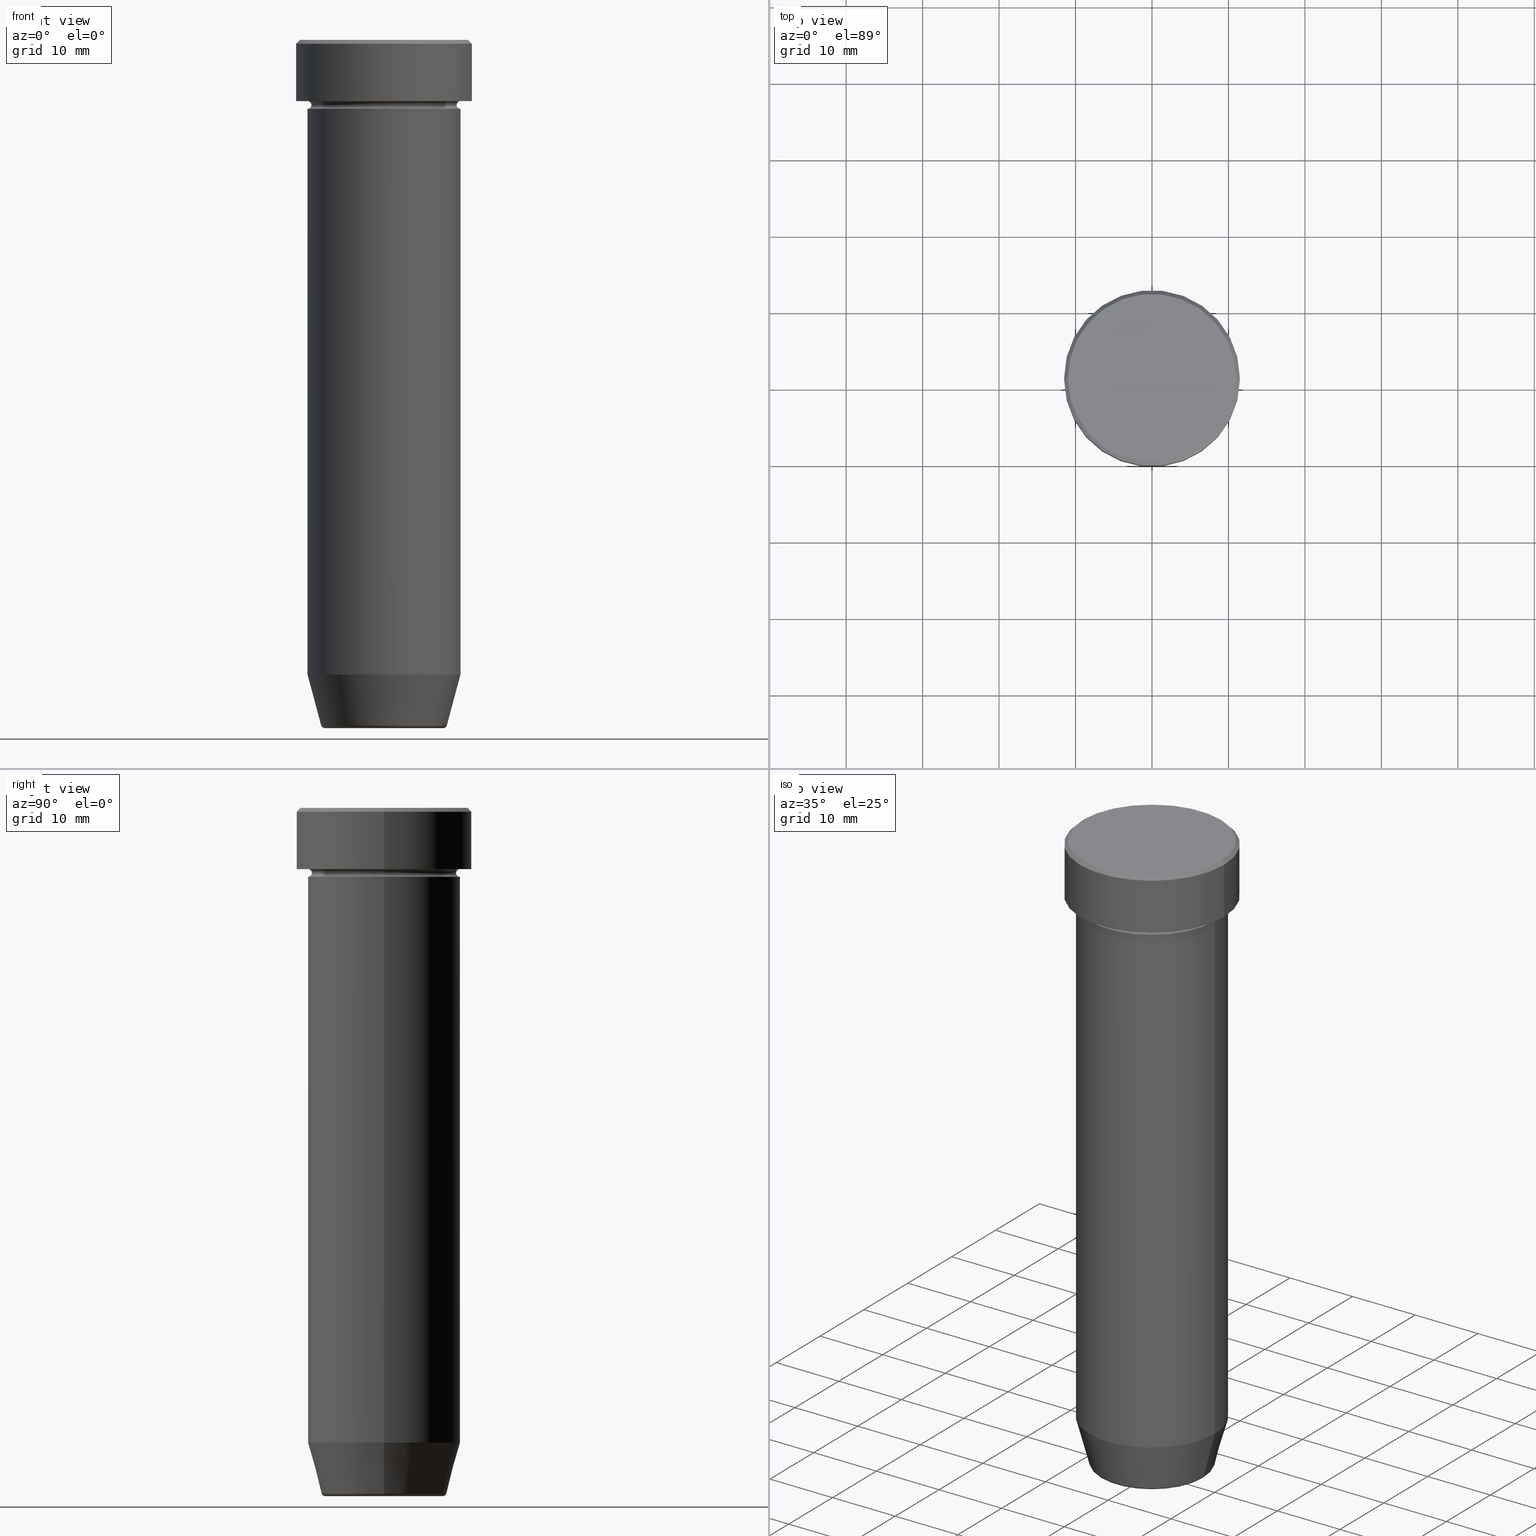
[diagram: canonical four-view strip — front | top / right | iso, engineering-drawing reading convention]
A machine part, canonical four-view strip (front | top / right | iso — engineering-drawing reading convention). The complete STEP part file that produces these views, byte-faithful:
ISO-10303-21;
HEADER;
FILE_DESCRIPTION (( 'STEP AP203' ),
    '1' );
FILE_NAME ('7908.STEP',
    '2024-01-02T20:53:57',
    ( '' ),
    ( '' ),
    'SwSTEP 2.0',
    'SolidWorks 2019',
    '' );
FILE_SCHEMA (( 'CONFIG_CONTROL_DESIGN' ));
ENDSEC;

DATA;
#1 = DIRECTION ( 'NONE',  ( 1.000000000000000000, 0.000000000000000000, 0.000000000000000000 ) ) ;
#2 = ORIENTED_EDGE ( 'NONE', *, *, #128, .F. ) ;
#3 = APPROVAL_STATUS ( 'not_yet_approved' ) ;
#4 = DIRECTION ( 'NONE',  ( -1.000000000000000000, 0.000000000000000000, 0.000000000000000000 ) ) ;
#5 = ORIENTED_EDGE ( 'NONE', *, *, #25, .T. ) ;
#6 = PERSON_AND_ORGANIZATION_ROLE ( 'design_owner' ) ;
#7 = CIRCLE ( 'NONE', #17, 10.00000000000000000 ) ;
#8 = FACE_OUTER_BOUND ( 'NONE', #13, .T. ) ;
#9 = ORIENTED_EDGE ( 'NONE', *, *, #377, .T. ) ;
#10 = APPROVAL ( #371, 'NEUR�EN�' ) ;
#11 = COORDINATED_UNIVERSAL_TIME_OFFSET ( 1, 0, .AHEAD. ) ;
#12 = CARTESIAN_POINT ( 'NONE',  ( 0.000000000000000000, 0.000000000000000000, -22.00000000000000000 ) ) ;
#13 = EDGE_LOOP ( 'NONE', ( #460, #190, #314, #96 ) ) ;
#14 = PLANE ( 'NONE',  #70 ) ;
#15 = ORIENTED_EDGE ( 'NONE', *, *, #311, .F. ) ;
#16 = EDGE_CURVE ( 'NONE', #172, #57, #565, .T. ) ;
#17 = AXIS2_PLACEMENT_3D ( 'NONE', #284, #519, #54 ) ;
#18 = DIRECTION ( 'NONE',  ( -1.000000000000000000, 0.000000000000000000, 0.000000000000000000 ) ) ;
#19 = AXIS2_PLACEMENT_3D ( 'NONE', #391, #575, #487 ) ;
#20 = EDGE_LOOP ( 'NONE', ( #346, #339 ) ) ;
#21 = PRODUCT_RELATED_PRODUCT_CATEGORY ( 'detail', '', ( #329 ) ) ;
#22 = CARTESIAN_POINT ( 'NONE',  ( 0.000000000000000000, 0.000000000000000000, -0.5000000000000073275 ) ) ;
#23 = DIRECTION ( 'NONE',  ( -0.000000000000000000, -0.000000000000000000, 1.000000000000000000 ) ) ;
#24 = DIRECTION ( 'NONE',  ( -1.000000000000000000, 0.000000000000000000, 0.000000000000000000 ) ) ;
#25 = EDGE_CURVE ( 'NONE', #370, #295, #159, .T. ) ;
#26 = TOROIDAL_SURFACE ( 'NONE', #263, 7.740692158992650285, 0.5000000000000000000 ) ;
#27 = DIRECTION ( 'NONE',  ( 0.000000000000000000, 0.000000000000000000, -1.000000000000000000 ) ) ;
#28 = LINE ( 'NONE', #216, #535 ) ;
#29 = FACE_OUTER_BOUND ( 'NONE', #368, .T. ) ;
#30 = CARTESIAN_POINT ( 'NONE',  ( 0.000000000000000000, 0.000000000000000000, 0.000000000000000000 ) ) ;
#31 = ADVANCED_FACE ( 'NONE', ( #305 ), #348, .T. ) ;
#32 = CARTESIAN_POINT ( 'NONE',  ( 0.000000000000000000, 0.000000000000000000, -89.50000000000000000 ) ) ;
#33 = DIRECTION ( 'NONE',  ( -0.000000000000000000, -0.000000000000000000, 1.000000000000000000 ) ) ;
#34 = ORIENTED_EDGE ( 'NONE', *, *, #343, .T. ) ;
#35 = DIRECTION ( 'NONE',  ( -0.000000000000000000, -1.000000000000000000, -0.000000000000000000 ) ) ;
#36 = CONICAL_SURFACE ( 'NONE', #381, 8.124355652982131915, 0.2617993877991502405 ) ;
#37 = FACE_BOUND ( 'NONE', #177, .T. ) ;
#38 = VERTEX_POINT ( 'NONE', #392 ) ;
#39 = ADVANCED_FACE ( 'NONE', ( #491 ), #36, .T. ) ;
#40 = APPROVAL_ROLE ( '' ) ;
#41 = DIRECTION ( 'NONE',  ( -1.000000000000000000, 0.000000000000000000, 0.000000000000000000 ) ) ;
#42 = EDGE_LOOP ( 'NONE', ( #376, #429, #206, #239 ) ) ;
#43 = AXIS2_PLACEMENT_3D ( 'NONE', #12, #235, #98 ) ;
#44 = CYLINDRICAL_SURFACE ( 'NONE', #435, 11.50000000000000000 ) ;
#45 = DATE_TIME_ROLE ( 'creation_date' ) ;
#46 = DIRECTION ( 'NONE',  ( -0.000000000000000000, -0.000000000000000000, 1.000000000000000000 ) ) ;
#47 = ORIENTED_EDGE ( 'NONE', *, *, #311, .T. ) ;
#48 = PERSON_AND_ORGANIZATION ( #325, #94 ) ;
#49 = EDGE_CURVE ( 'NONE', #373, #92, #310, .T. ) ;
#50 = CARTESIAN_POINT ( 'NONE',  ( -10.00000000000000000, 1.224646799147353256E-15, -22.00000000000000000 ) ) ;
#51 = VERTEX_POINT ( 'NONE', #68 ) ;
#52 = CALENDAR_DATE ( 2024, 2, 1 ) ;
#53 = CIRCLE ( 'NONE', #451, 0.4999999999999995559 ) ;
#54 = DIRECTION ( 'NONE',  ( -1.000000000000000000, 0.000000000000000000, 0.000000000000000000 ) ) ;
#55 = VERTEX_POINT ( 'NONE', #534 ) ;
#56 = CARTESIAN_POINT ( 'NONE',  ( 0.000000000000000000, 0.000000000000000000, -8.000000000000000000 ) ) ;
#57 = VERTEX_POINT ( 'NONE', #255 ) ;
#58 = EDGE_CURVE ( 'NONE', #172, #295, #187, .T. ) ;
#59 = UNCERTAINTY_MEASURE_WITH_UNIT (LENGTH_MEASURE( 1.000000000000000082E-05 ), #210, 'distance_accuracy_value', 'NONE');
#60 = DIRECTION ( 'NONE',  ( -1.000000000000000000, 1.224646799147355426E-16, 0.000000000000000000 ) ) ;
#61 = ORIENTED_EDGE ( 'NONE', *, *, #409, .F. ) ;
#62 = AXIS2_PLACEMENT_3D ( 'NONE', #217, #111, #127 ) ;
#63 = CARTESIAN_POINT ( 'NONE',  ( -11.50000000000000000, 1.408343819019456176E-15, -0.5000000000000073275 ) ) ;
#64 = ORIENTED_EDGE ( 'NONE', *, *, #393, .T. ) ;
#65 = CLOSED_SHELL ( 'NONE', ( #420, #249, #231, #552, #188, #452, #208, #31, #283, #296, #165, #160, #149 ) ) ;
#66 = FACE_OUTER_BOUND ( 'NONE', #566, .T. ) ;
#67 = ADVANCED_FACE ( 'NONE', ( #29 ), #73, .F. ) ;
#68 = CARTESIAN_POINT ( 'NONE',  ( -7.740692158992650285, 9.775343368540031246E-16, -90.00000000000000000 ) ) ;
#69 = CARTESIAN_POINT ( 'NONE',  ( 0.000000000000000000, 0.000000000000000000, -90.00000000000000000 ) ) ;
#70 = AXIS2_PLACEMENT_3D ( 'NONE', #156, #192, #375 ) ;
#71 = AXIS2_PLACEMENT_3D ( 'NONE', #410, #495, #577 ) ;
#72 = CARTESIAN_POINT ( 'NONE',  ( 0.000000000000000000, 0.000000000000000000, -82.99999999999998579 ) ) ;
#73 = PLANE ( 'NONE',  #431 ) ;
#74 = EDGE_CURVE ( 'NONE', #474, #525, #28, .T. ) ;
#75 =( NAMED_UNIT ( * ) PLANE_ANGLE_UNIT ( ) SI_UNIT ( $, .RADIAN. ) );
#76 = DIRECTION ( 'NONE',  ( -1.000000000000000000, 1.224646799147353454E-16, 0.000000000000000000 ) ) ;
#77 = DIRECTION ( 'NONE',  ( 1.000000000000000000, 0.000000000000000000, 0.000000000000000000 ) ) ;
#78 = DIRECTION ( 'NONE',  ( 0.000000000000000000, -0.000000000000000000, 1.000000000000000000 ) ) ;
#79 = CIRCLE ( 'NONE', #180, 11.50000000000000000 ) ;
#80 = TOROIDAL_SURFACE ( 'NONE', #511, 7.740692158992650285, 0.5000000000000000000 ) ;
#81 = EDGE_LOOP ( 'NONE', ( #422, #274 ) ) ;
#82 = DIRECTION ( 'NONE',  ( 1.000000000000000000, 0.000000000000000000, 0.000000000000000000 ) ) ;
#83 = EDGE_CURVE ( 'NONE', #134, #506, #260, .T. ) ;
#84 = CARTESIAN_POINT ( 'NONE',  ( -9.500000000000000000, 1.194030629168669469E-15, -8.500000000000000000 ) ) ;
#85 = ORIENTED_EDGE ( 'NONE', *, *, #590, .F. ) ;
#86 = APPROVAL_ROLE ( '' ) ;
#87 = VECTOR ( 'NONE', #357, 1000.000000000000000 ) ;
#88 = FACE_OUTER_BOUND ( 'NONE', #529, .T. ) ;
#89 = EDGE_LOOP ( 'NONE', ( #290, #545, #321, #85 ) ) ;
#90 = DIRECTION ( 'NONE',  ( 0.000000000000000000, 0.000000000000000000, 1.000000000000000000 ) ) ;
#91 = CARTESIAN_POINT ( 'NONE',  ( 11.00000000000000000, 1.377727649040772389E-15, 0.000000000000000000 ) ) ;
#92 = VERTEX_POINT ( 'NONE', #308 ) ;
#93 = AXIS2_PLACEMENT_3D ( 'NONE', #564, #337, #523 ) ;
#94 = ORGANIZATION ( 'NEUR�EN�', 'NEUR�EN�', '' ) ;
#95 = DIRECTION ( 'NONE',  ( 1.000000000000000000, 0.000000000000000000, 0.000000000000000000 ) ) ;
#96 = ORIENTED_EDGE ( 'NONE', *, *, #497, .F. ) ;
#97 = EDGE_CURVE ( 'NONE', #344, #373, #583, .T. ) ;
#98 = DIRECTION ( 'NONE',  ( 1.000000000000000000, 0.000000000000000000, 0.000000000000000000 ) ) ;
#99 = EDGE_LOOP ( 'NONE', ( #148, #571, #412, #107 ) ) ;
#100 = APPROVAL_STATUS ( 'not_yet_approved' ) ;
#101 = DIRECTION ( 'NONE',  ( 1.000000000000000000, 0.000000000000000000, 0.000000000000000000 ) ) ;
#102 = VERTEX_POINT ( 'NONE', #580 ) ;
#103 = AXIS2_PLACEMENT_3D ( 'NONE', #292, #475, #18 ) ;
#104 = LOCAL_TIME ( 21, 53, 57.00000000000000000, #195 ) ;
#105 = DIRECTION ( 'NONE',  ( -0.000000000000000000, -0.000000000000000000, 1.000000000000000000 ) ) ;
#106 = ADVANCED_FACE ( 'NONE', ( #163 ), #304, .T. ) ;
#107 = ORIENTED_EDGE ( 'NONE', *, *, #400, .F. ) ;
#108 = CARTESIAN_POINT ( 'NONE',  ( 0.000000000000000000, 0.000000000000000000, -22.00000000000000000 ) ) ;
#109 = AXIS2_PLACEMENT_3D ( 'NONE', #448, #254, #442 ) ;
#110 = VERTEX_POINT ( 'NONE', #352 ) ;
#111 = DIRECTION ( 'NONE',  ( -0.000000000000000000, -0.000000000000000000, 1.000000000000000000 ) ) ;
#112 = ORIENTED_EDGE ( 'NONE', *, *, #518, .F. ) ;
#113 = AXIS2_PLACEMENT_3D ( 'NONE', #478, #382, #281 ) ;
#114 = CARTESIAN_POINT ( 'NONE',  ( 0.000000000000000000, 0.000000000000000000, -9.000000000000001776 ) ) ;
#115 = DIRECTION ( 'NONE',  ( 0.000000000000000000, 0.000000000000000000, -1.000000000000000000 ) ) ;
#116 = DIRECTION ( 'NONE',  ( 1.000000000000000000, 0.000000000000000000, 0.000000000000000000 ) ) ;
#117 = VECTOR ( 'NONE', #576, 1000.000000000000114 ) ;
#118 = DIRECTION ( 'NONE',  ( 1.224646799147353207E-16, 1.000000000000000000, 0.000000000000000000 ) ) ;
#119 = AXIS2_PLACEMENT_3D ( 'NONE', #108, #105, #465 ) ;
#120 = SECURITY_CLASSIFICATION ( '', '', #135 ) ;
#121 = DIRECTION ( 'NONE',  ( 0.000000000000000000, 0.000000000000000000, -1.000000000000000000 ) ) ;
#122 = EDGE_CURVE ( 'NONE', #51, #426, #174, .T. ) ;
#123 = DIRECTION ( 'NONE',  ( 1.000000000000000000, 0.000000000000000000, 0.000000000000000000 ) ) ;
#124 = DIRECTION ( 'NONE',  ( -0.000000000000000000, -0.000000000000000000, 1.000000000000000000 ) ) ;
#125 = ORIENTED_EDGE ( 'NONE', *, *, #333, .T. ) ;
#126 = APPLICATION_CONTEXT ( 'configuration controlled 3d designs of mechanical parts and assemblies' ) ;
#127 = DIRECTION ( 'NONE',  ( 1.000000000000000000, 0.000000000000000000, 0.000000000000000000 ) ) ;
#128 = EDGE_CURVE ( 'NONE', #224, #525, #582, .T. ) ;
#129 = CARTESIAN_POINT ( 'NONE',  ( 0.000000000000000000, 0.000000000000000000, 0.000000000000000000 ) ) ;
#130 = TOROIDAL_SURFACE ( 'NONE', #324, 10.00000000000000000, 0.5000000000000000000 ) ;
#131 = ORIENTED_EDGE ( 'NONE', *, *, #351, .T. ) ;
#132 = PERSON_AND_ORGANIZATION_ROLE ( 'creator' ) ;
#133 = DIRECTION ( 'NONE',  ( -0.000000000000000000, -0.000000000000000000, 1.000000000000000000 ) ) ;
#134 = VERTEX_POINT ( 'NONE', #537 ) ;
#135 = SECURITY_CLASSIFICATION_LEVEL ( 'unclassified' ) ;
#136 = DIRECTION ( 'NONE',  ( 1.000000000000000000, 0.000000000000000000, 0.000000000000000000 ) ) ;
#137 = ORIENTED_EDGE ( 'NONE', *, *, #562, .T. ) ;
#138 = COORDINATED_UNIVERSAL_TIME_OFFSET ( 1, 0, .AHEAD. ) ;
#139 = DIRECTION ( 'NONE',  ( 1.000000000000000000, 0.000000000000000000, 0.000000000000000000 ) ) ;
#140 = AXIS2_PLACEMENT_3D ( 'NONE', #463, #362, #320 ) ;
#141 = ORIENTED_EDGE ( 'NONE', *, *, #464, .T. ) ;
#142 = EDGE_CURVE ( 'NONE', #102, #92, #480, .T. ) ;
#143 = CIRCLE ( 'NONE', #416, 10.00000000000000000 ) ;
#144 = CARTESIAN_POINT ( 'NONE',  ( -11.00000000000000000, 0.000000000000000000, 0.000000000000000000 ) ) ;
#145 = ORIENTED_EDGE ( 'NONE', *, *, #97, .T. ) ;
#146 = PERSON_AND_ORGANIZATION_ROLE ( 'design_supplier' ) ;
#147 = DIRECTION ( 'NONE',  ( 1.000000000000000000, 0.000000000000000000, 0.000000000000000000 ) ) ;
#148 = ORIENTED_EDGE ( 'NONE', *, *, #581, .F. ) ;
#149 = ADVANCED_FACE ( 'NONE', ( #215 ), #374, .T. ) ;
#150 = DIRECTION ( 'NONE',  ( 1.000000000000000000, 0.000000000000000000, 0.000000000000000000 ) ) ;
#151 = EDGE_LOOP ( 'NONE', ( #323, #386, #331, #298 ) ) ;
#152 = AXIS2_PLACEMENT_3D ( 'NONE', #330, #515, #309 ) ;
#153 = CARTESIAN_POINT ( 'NONE',  ( 10.00000000000000000, 0.000000000000000000, -9.000000000000001776 ) ) ;
#154 = ADVANCED_BREP_SHAPE_REPRESENTATION ( '7908', ( #485, #285, #532 ), #462 ) ;
#155 = ORIENTED_EDGE ( 'NONE', *, *, #49, .F. ) ;
#156 = CARTESIAN_POINT ( 'NONE',  ( 0.000000000000000000, 10.00000000000000000, -22.00000000000000000 ) ) ;
#157 = ORIENTED_EDGE ( 'NONE', *, *, #573, .T. ) ;
#158 = FACE_OUTER_BOUND ( 'NONE', #433, .T. ) ;
#159 = LINE ( 'NONE', #584, #87 ) ;
#160 = ADVANCED_FACE ( 'NONE', ( #512 ), #130, .F. ) ;
#161 = CIRCLE ( 'NONE', #500, 7.740692158992650285 ) ;
#162 = APPLICATION_CONTEXT ( 'configuration controlled 3d designs of mechanical parts and assemblies' ) ;
#163 = FACE_OUTER_BOUND ( 'NONE', #503, .T. ) ;
#164 = CARTESIAN_POINT ( 'NONE',  ( 11.00000000000000000, 1.347111479062088405E-15, 0.000000000000000000 ) ) ;
#165 = ADVANCED_FACE ( 'NONE', ( #502 ), #558, .F. ) ;
#166 = DIRECTION ( 'NONE',  ( 1.000000000000000000, 0.000000000000000000, 0.000000000000000000 ) ) ;
#167 = AXIS2_PLACEMENT_3D ( 'NONE', #297, #269, #454 ) ;
#168 = LOCAL_TIME ( 21, 53, 57.00000000000000000, #287 ) ;
#169 = DIRECTION ( 'NONE',  ( -0.000000000000000000, -0.000000000000000000, 1.000000000000000000 ) ) ;
#170 = CARTESIAN_POINT ( 'NONE',  ( 0.000000000000000000, 0.000000000000000000, -89.62940952255125637 ) ) ;
#171 = FACE_OUTER_BOUND ( 'NONE', #479, .T. ) ;
#172 = VERTEX_POINT ( 'NONE', #84 ) ;
#173 = ADVANCED_FACE ( 'NONE', ( #317 ), #549, .F. ) ;
#174 = CIRCLE ( 'NONE', #334, 7.740692158992650285 ) ;
#175 = DIRECTION ( 'NONE',  ( -0.000000000000000000, -0.000000000000000000, 1.000000000000000000 ) ) ;
#176 = PLANE ( 'NONE',  #586 ) ;
#177 = EDGE_LOOP ( 'NONE', ( #131, #245 ) ) ;
#178 = CARTESIAN_POINT ( 'NONE',  ( 0.000000000000000000, 0.000000000000000000, -8.000000000000000000 ) ) ;
#179 = CYLINDRICAL_SURFACE ( 'NONE', #212, 9.999999999999998224 ) ;
#180 = AXIS2_PLACEMENT_3D ( 'NONE', #468, #567, #147 ) ;
#181 = CIRCLE ( 'NONE', #62, 11.00000000000000000 ) ;
#182 = SHAPE_DEFINITION_REPRESENTATION ( #183, #154 ) ;
#183 = PRODUCT_DEFINITION_SHAPE ( 'NONE', 'NONE',  #198 ) ;
#184 = DIRECTION ( 'NONE',  ( -0.000000000000000000, -0.000000000000000000, 1.000000000000000000 ) ) ;
#185 = ORIENTED_EDGE ( 'NONE', *, *, #264, .F. ) ;
#186 = PERSON_AND_ORGANIZATION ( #325, #94 ) ;
#187 = CIRCLE ( 'NONE', #199, 0.5000000000000004441 ) ;
#188 = ADVANCED_FACE ( 'NONE', ( #450 ), #44, .T. ) ;
#189 = DIRECTION ( 'NONE',  ( 1.000000000000000000, 0.000000000000000000, 0.000000000000000000 ) ) ;
#190 = ORIENTED_EDGE ( 'NONE', *, *, #319, .T. ) ;
#191 = DATE_AND_TIME ( #276, #397 ) ;
#192 = DIRECTION ( 'NONE',  ( 0.000000000000000000, 0.000000000000000000, -1.000000000000000000 ) ) ;
#193 = VECTOR ( 'NONE', #288, 1000.000000000000000 ) ;
#194 = ORIENTED_EDGE ( 'NONE', *, *, #518, .T. ) ;
#195 = COORDINATED_UNIVERSAL_TIME_OFFSET ( 1, 0, .AHEAD. ) ;
#196 = CARTESIAN_POINT ( 'NONE',  ( -9.999999999999998224, 1.224646799147353059E-15, 0.000000000000000000 ) ) ;
#197 = EDGE_LOOP ( 'NONE', ( #247, #185 ) ) ;
#198 = PRODUCT_DEFINITION ( 'NEZN�M�', '', #579, #445 ) ;
#199 = AXIS2_PLACEMENT_3D ( 'NONE', #211, #118, #76 ) ;
#200 = CARTESIAN_POINT ( 'NONE',  ( 8.223655072137185940, 0.000000000000000000, -89.62940952255125637 ) ) ;
#201 = ORIENTED_EDGE ( 'NONE', *, *, #447, .F. ) ;
#202 = CARTESIAN_POINT ( 'NONE',  ( 8.124355652982131915, 0.000000000000000000, -90.00000000000000000 ) ) ;
#203 = ORIENTED_EDGE ( 'NONE', *, *, #49, .T. ) ;
#204 = AXIS2_PLACEMENT_3D ( 'NONE', #372, #456, #139 ) ;
#205 = FACE_OUTER_BOUND ( 'NONE', #197, .T. ) ;
#206 = ORIENTED_EDGE ( 'NONE', *, *, #473, .T. ) ;
#207 = DIRECTION ( 'NONE',  ( -0.000000000000000000, -0.000000000000000000, 1.000000000000000000 ) ) ;
#208 = ADVANCED_FACE ( 'NONE', ( #232 ), #508, .T. ) ;
#209 = CARTESIAN_POINT ( 'NONE',  ( 0.000000000000000000, 0.000000000000000000, -90.00000000000000000 ) ) ;
#210 =( LENGTH_UNIT ( ) NAMED_UNIT ( * ) SI_UNIT ( .MILLI., .METRE. ) );
#211 = CARTESIAN_POINT ( 'NONE',  ( -10.00000000000000000, 1.224646799147353256E-15, -8.500000000000000000 ) ) ;
#212 = AXIS2_PLACEMENT_3D ( 'NONE', #261, #184, #273 ) ;
#213 = DIRECTION ( 'NONE',  ( 1.000000000000000000, 0.000000000000000000, 0.000000000000000000 ) ) ;
#214 = ADVANCED_FACE ( 'NONE', ( #407 ), #179, .T. ) ;
#215 = FACE_OUTER_BOUND ( 'NONE', #513, .T. ) ;
#216 = CARTESIAN_POINT ( 'NONE',  ( 11.50000000000000000, 0.000000000000000000, 0.000000000000000000 ) ) ;
#217 = CARTESIAN_POINT ( 'NONE',  ( 0.000000000000000000, 0.000000000000000000, 0.000000000000000000 ) ) ;
#218 = CIRCLE ( 'NONE', #289, 9.500000000000000000 ) ;
#219 = CARTESIAN_POINT ( 'NONE',  ( 0.000000000000000000, 0.000000000000000000, -8.500000000000000000 ) ) ;
#220 = CARTESIAN_POINT ( 'NONE',  ( 11.50000000000000000, 0.000000000000000000, -8.000000000000000000 ) ) ;
#221 = DIRECTION ( 'NONE',  ( 1.000000000000000000, 0.000000000000000000, 0.000000000000000000 ) ) ;
#222 = ORIENTED_EDGE ( 'NONE', *, *, #351, .F. ) ;
#223 = CARTESIAN_POINT ( 'NONE',  ( 0.000000000000000000, 11.50000000000000000, -8.000000000000000000 ) ) ;
#224 = VERTEX_POINT ( 'NONE', #91 ) ;
#225 = PERSON_AND_ORGANIZATION_ROLE ( 'classification_officer' ) ;
#226 = FACE_OUTER_BOUND ( 'NONE', #466, .T. ) ;
#227 = AXIS2_PLACEMENT_3D ( 'NONE', #22, #301, #404 ) ;
#228 = AXIS2_PLACEMENT_3D ( 'NONE', #591, #35, #481 ) ;
#229 = ORIENTED_EDGE ( 'NONE', *, *, #441, .T. ) ;
#230 = APPLICATION_PROTOCOL_DEFINITION ( 'international standard', 'config_control_design', 1994, #162 ) ;
#231 = ADVANCED_FACE ( 'NONE', ( #88 ), #595, .F. ) ;
#232 = FACE_OUTER_BOUND ( 'NONE', #81, .T. ) ;
#233 = ORIENTED_EDGE ( 'NONE', *, *, #573, .F. ) ;
#234 = PERSON_AND_ORGANIZATION ( #325, #94 ) ;
#235 = DIRECTION ( 'NONE',  ( -0.000000000000000000, -0.000000000000000000, 1.000000000000000000 ) ) ;
#236 = EDGE_LOOP ( 'NONE', ( #363, #9, #516, #293 ) ) ;
#237 = EDGE_CURVE ( 'NONE', #55, #383, #418, .T. ) ;
#238 = CONICAL_SURFACE ( 'NONE', #103, 11.00000000000000000, 0.7853981633974415066 ) ;
#239 = ORIENTED_EDGE ( 'NONE', *, *, #530, .T. ) ;
#240 = APPROVAL_DATE_TIME ( #504, #365 ) ;
#241 = CARTESIAN_POINT ( 'NONE',  ( 0.000000000000000000, 0.000000000000000000, -89.50000000000000000 ) ) ;
#242 = ORIENTED_EDGE ( 'NONE', *, *, #464, .F. ) ;
#243 = VECTOR ( 'NONE', #259, 1000.000000000000000 ) ;
#244 = LINE ( 'NONE', #196, #193 ) ;
#245 = ORIENTED_EDGE ( 'NONE', *, *, #447, .T. ) ;
#246 = CARTESIAN_POINT ( 'NONE',  ( -7.740692158992650285, 9.479613875695363848E-16, -89.50000000000000000 ) ) ;
#247 = ORIENTED_EDGE ( 'NONE', *, *, #441, .F. ) ;
#248 = VECTOR ( 'NONE', #175, 1000.000000000000000 ) ;
#249 = ADVANCED_FACE ( 'NONE', ( #171 ), #546, .F. ) ;
#250 = CARTESIAN_POINT ( 'NONE',  ( 0.000000000000000000, 0.000000000000000000, -9.000000000000001776 ) ) ;
#251 = ORIENTED_EDGE ( 'NONE', *, *, #377, .F. ) ;
#252 = DIRECTION ( 'NONE',  ( 1.000000000000000000, 0.000000000000000000, 0.000000000000000000 ) ) ;
#253 = AXIS2_PLACEMENT_3D ( 'NONE', #494, #490, #166 ) ;
#254 = DIRECTION ( 'NONE',  ( -0.000000000000000000, -0.000000000000000000, 1.000000000000000000 ) ) ;
#255 = CARTESIAN_POINT ( 'NONE',  ( 9.500000000000000000, 0.000000000000000000, -8.500000000000000000 ) ) ;
#256 = CC_DESIGN_PERSON_AND_ORGANIZATION_ASSIGNMENT ( #470, #132, ( #198 ) ) ;
#257 = AXIS2_PLACEMENT_3D ( 'NONE', #56, #432, #4 ) ;
#258 = APPROVAL_PERSON_ORGANIZATION ( #427, #10, #40 ) ;
#259 = DIRECTION ( 'NONE',  ( -0.000000000000000000, -0.000000000000000000, 1.000000000000000000 ) ) ;
#260 = LINE ( 'NONE', #354, #243 ) ;
#261 = CARTESIAN_POINT ( 'NONE',  ( 0.000000000000000000, 0.000000000000000000, 0.000000000000000000 ) ) ;
#262 = DIRECTION ( 'NONE',  ( -0.000000000000000000, -0.000000000000000000, 1.000000000000000000 ) ) ;
#263 = AXIS2_PLACEMENT_3D ( 'NONE', #241, #384, #101 ) ;
#264 = EDGE_CURVE ( 'NONE', #370, #55, #278, .T. ) ;
#265 = CC_DESIGN_APPROVAL ( #365, ( #198 ) ) ;
#266 = DIRECTION ( 'NONE',  ( 1.000000000000000000, 0.000000000000000000, 0.000000000000000000 ) ) ;
#267 = VECTOR ( 'NONE', #353, 1000.000000000000000 ) ;
#268 = EDGE_LOOP ( 'NONE', ( #286, #488 ) ) ;
#269 = DIRECTION ( 'NONE',  ( 0.000000000000000000, -1.000000000000000000, 0.000000000000000000 ) ) ;
#270 = CARTESIAN_POINT ( 'NONE',  ( 0.000000000000000000, 0.000000000000000000, -8.500000000000000000 ) ) ;
#271 = ORIENTED_EDGE ( 'NONE', *, *, #16, .F. ) ;
#272 = DATE_TIME_ROLE ( 'classification_date' ) ;
#273 = DIRECTION ( 'NONE',  ( 1.000000000000000000, 0.000000000000000000, 0.000000000000000000 ) ) ;
#274 = ORIENTED_EDGE ( 'NONE', *, *, #581, .T. ) ;
#275 = ADVANCED_FACE ( 'NONE', ( #226 ), #338, .T. ) ;
#276 = CALENDAR_DATE ( 2024, 2, 1 ) ;
#277 = CARTESIAN_POINT ( 'NONE',  ( 0.000000000000000000, 4.898587196589413815E-15, -90.00000000000000000 ) ) ;
#278 = CIRCLE ( 'NONE', #299, 10.00000000000000000 ) ;
#279 = AXIS2_PLACEMENT_3D ( 'NONE', #250, #593, #438 ) ;
#280 = EDGE_LOOP ( 'NONE', ( #137, #499, #64, #527 ) ) ;
#281 = DIRECTION ( 'NONE',  ( 1.000000000000000000, 0.000000000000000000, 0.000000000000000000 ) ) ;
#282 = ORIENTED_EDGE ( 'NONE', *, *, #536, .F. ) ;
#283 = ADVANCED_FACE ( 'NONE', ( #37, #498 ), #176, .T. ) ;
#284 = CARTESIAN_POINT ( 'NONE',  ( 0.000000000000000000, 0.000000000000000000, -8.000000000000000000 ) ) ;
#285 = MANIFOLD_SOLID_BREP ( 'Zaoblit4', #477 ) ;
#286 = ORIENTED_EDGE ( 'NONE', *, *, #409, .T. ) ;
#287 = COORDINATED_UNIVERSAL_TIME_OFFSET ( 1, 0, .AHEAD. ) ;
#288 = DIRECTION ( 'NONE',  ( -0.000000000000000000, -0.000000000000000000, 1.000000000000000000 ) ) ;
#289 = AXIS2_PLACEMENT_3D ( 'NONE', #472, #46, #572 ) ;
#290 = ORIENTED_EDGE ( 'NONE', *, *, #25, .F. ) ;
#291 = CIRCLE ( 'NONE', #19, 0.5000000000000004441 ) ;
#292 = CARTESIAN_POINT ( 'NONE',  ( 0.000000000000000000, 0.000000000000000000, 0.000000000000000000 ) ) ;
#293 = ORIENTED_EDGE ( 'NONE', *, *, #492, .F. ) ;
#294 = CARTESIAN_POINT ( 'NONE',  ( -11.00000000000000000, 0.000000000000000000, 0.000000000000000000 ) ) ;
#295 = VERTEX_POINT ( 'NONE', #411 ) ;
#296 = ADVANCED_FACE ( 'NONE', ( #367 ), #598, .T. ) ;
#297 = CARTESIAN_POINT ( 'NONE',  ( 7.740692158992650285, 0.000000000000000000, -89.50000000000000000 ) ) ;
#298 = ORIENTED_EDGE ( 'NONE', *, *, #486, .T. ) ;
#299 = AXIS2_PLACEMENT_3D ( 'NONE', #556, #313, #189 ) ;
#300 = CC_DESIGN_APPROVAL ( #10, ( #120 ) ) ;
#301 = DIRECTION ( 'NONE',  ( 0.000000000000000000, 0.000000000000000000, -1.000000000000000000 ) ) ;
#302 = ORIENTED_EDGE ( 'NONE', *, *, #319, .F. ) ;
#303 = CC_DESIGN_PERSON_AND_ORGANIZATION_ASSIGNMENT ( #48, #6, ( #329 ) ) ;
#304 = CYLINDRICAL_SURFACE ( 'NONE', #253, 9.999999999999998224 ) ;
#305 = FACE_OUTER_BOUND ( 'NONE', #151, .T. ) ;
#306 = AXIS2_PLACEMENT_3D ( 'NONE', #399, #121, #41 ) ;
#307 = AXIS2_PLACEMENT_3D ( 'NONE', #440, #124, #394 ) ;
#308 = CARTESIAN_POINT ( 'NONE',  ( -9.999999999999998224, 1.224646799147353059E-15, -82.99999999999998579 ) ) ;
#309 = DIRECTION ( 'NONE',  ( 0.000000000000000000, 0.000000000000000000, -1.000000000000000000 ) ) ;
#310 = LINE ( 'NONE', #496, #117 ) ;
#311 = EDGE_CURVE ( 'NONE', #327, #436, #444, .T. ) ;
#312 =( NAMED_UNIT ( * ) SI_UNIT ( $, .STERADIAN. ) SOLID_ANGLE_UNIT ( ) );
#313 = DIRECTION ( 'NONE',  ( -0.000000000000000000, -0.000000000000000000, 1.000000000000000000 ) ) ;
#314 = ORIENTED_EDGE ( 'NONE', *, *, #97, .F. ) ;
#315 = CIRCLE ( 'NONE', #119, 10.00000000000000000 ) ;
#316 = AXIS2_PLACEMENT_3D ( 'NONE', #178, #540, #531 ) ;
#317 = FACE_OUTER_BOUND ( 'NONE', #268, .T. ) ;
#318 = APPROVAL_DATE_TIME ( #414, #467 ) ;
#319 = EDGE_CURVE ( 'NONE', #51, #373, #53, .T. ) ;
#320 = DIRECTION ( 'NONE',  ( 1.000000000000000000, 0.000000000000000000, 0.000000000000000000 ) ) ;
#321 = ORIENTED_EDGE ( 'NONE', *, *, #237, .T. ) ;
#322 = DIRECTION ( 'NONE',  ( 0.000000000000000000, 0.000000000000000000, -1.000000000000000000 ) ) ;
#323 = ORIENTED_EDGE ( 'NONE', *, *, #83, .F. ) ;
#324 = AXIS2_PLACEMENT_3D ( 'NONE', #219, #322, #453 ) ;
#325 = PERSON ( 'NEUR�EN�', 'NEUR�EN�', 'NEUR�EN�', ('NEUR�EN�'), ('NEUR�EN�'), ('NEUR�EN�') ) ;
#326 = DIRECTION ( 'NONE',  ( -1.000000000000000000, 0.000000000000000000, 0.000000000000000000 ) ) ;
#327 = VERTEX_POINT ( 'NONE', #50 ) ;
#328 = PERSON_AND_ORGANIZATION_ROLE ( 'creator' ) ;
#329 = PRODUCT ( '7908', '7908', '', ( #555 ) ) ;
#330 = CARTESIAN_POINT ( 'NONE',  ( 10.00000000000000000, 0.000000000000000000, -8.500000000000000000 ) ) ;
#331 = ORIENTED_EDGE ( 'NONE', *, *, #74, .T. ) ;
#332 = DIRECTION ( 'NONE',  ( 1.000000000000000000, 0.000000000000000000, 0.000000000000000000 ) ) ;
#333 = EDGE_CURVE ( 'NONE', #57, #172, #218, .T. ) ;
#334 = AXIS2_PLACEMENT_3D ( 'NONE', #69, #27, #213 ) ;
#335 = CARTESIAN_POINT ( 'NONE',  ( 10.00000000000000000, 0.000000000000000000, -22.00000000000000000 ) ) ;
#336 = EDGE_LOOP ( 'NONE', ( #112, #125, #361, #201 ) ) ;
#337 = DIRECTION ( 'NONE',  ( -0.000000000000000000, -0.000000000000000000, 1.000000000000000000 ) ) ;
#338 = CONICAL_SURFACE ( 'NONE', #204, 8.124355652982131915, 0.2617993877991502405 ) ;
#339 = ORIENTED_EDGE ( 'NONE', *, *, #430, .F. ) ;
#340 = LOCAL_TIME ( 21, 53, 57.00000000000000000, #138 ) ;
#341 = AXIS2_PLACEMENT_3D ( 'NONE', #72, #538, #446 ) ;
#342 = LINE ( 'NONE', #294, #424 ) ;
#343 = EDGE_CURVE ( 'NONE', #436, #327, #385, .T. ) ;
#344 = VERTEX_POINT ( 'NONE', #200 ) ;
#345 = CARTESIAN_POINT ( 'NONE',  ( -10.00000000000000000, 1.224646799147353256E-15, -22.00000000000000000 ) ) ;
#346 = ORIENTED_EDGE ( 'NONE', *, *, #562, .F. ) ;
#347 = CYLINDRICAL_SURFACE ( 'NONE', #71, 10.00000000000000000 ) ;
#348 = CYLINDRICAL_SURFACE ( 'NONE', #455, 11.50000000000000000 ) ;
#349 = VECTOR ( 'NONE', #133, 1000.000000000000000 ) ;
#350 = CC_DESIGN_SECURITY_CLASSIFICATION ( #120, ( #579 ) ) ;
#351 = EDGE_CURVE ( 'NONE', #110, #38, #7, .T. ) ;
#352 = CARTESIAN_POINT ( 'NONE',  ( -10.00000000000000000, 0.000000000000000000, -8.000000000000000000 ) ) ;
#353 = DIRECTION ( 'NONE',  ( 0.7071067811865426878, 8.659560562354874926E-17, -0.7071067811865524577 ) ) ;
#354 = CARTESIAN_POINT ( 'NONE',  ( -11.50000000000000000, 1.408343819019456176E-15, 0.000000000000000000 ) ) ;
#355 = AXIS2_PLACEMENT_3D ( 'NONE', #360, #405, #1 ) ;
#356 = CIRCLE ( 'NONE', #316, 11.50000000000000000 ) ;
#357 = DIRECTION ( 'NONE',  ( -0.000000000000000000, -0.000000000000000000, 1.000000000000000000 ) ) ;
#358 = ADVANCED_FACE ( 'NONE', ( #8 ), #26, .T. ) ;
#359 = DIRECTION ( 'NONE',  ( -0.000000000000000000, -0.000000000000000000, 1.000000000000000000 ) ) ;
#360 = CARTESIAN_POINT ( 'NONE',  ( 0.000000000000000000, 0.000000000000000000, 0.000000000000000000 ) ) ;
#361 = ORIENTED_EDGE ( 'NONE', *, *, #536, .T. ) ;
#362 = DIRECTION ( 'NONE',  ( -0.000000000000000000, -0.000000000000000000, 1.000000000000000000 ) ) ;
#363 = ORIENTED_EDGE ( 'NONE', *, *, #142, .T. ) ;
#364 = APPROVAL_DATE_TIME ( #596, #10 ) ;
#365 = APPROVAL ( #3, 'NEUR�EN�' ) ;
#366 = AXIS2_PLACEMENT_3D ( 'NONE', #170, #588, #542 ) ;
#367 = FACE_OUTER_BOUND ( 'NONE', #89, .T. ) ;
#368 = EDGE_LOOP ( 'NONE', ( #34, #47 ) ) ;
#369 = CARTESIAN_POINT ( 'NONE',  ( 0.000000000000000000, 0.000000000000000000, 0.000000000000000000 ) ) ;
#370 = VERTEX_POINT ( 'NONE', #345 ) ;
#371 = APPROVAL_STATUS ( 'not_yet_approved' ) ;
#372 = CARTESIAN_POINT ( 'NONE',  ( 0.000000000000000000, 0.000000000000000000, -90.00000000000000000 ) ) ;
#373 = VERTEX_POINT ( 'NONE', #421 ) ;
#374 = CONICAL_SURFACE ( 'NONE', #306, 11.00000000000000000, 0.7853981633974415066 ) ;
#375 = DIRECTION ( 'NONE',  ( -1.000000000000000000, 0.000000000000000000, -0.000000000000000000 ) ) ;
#376 = ORIENTED_EDGE ( 'NONE', *, *, #58, .F. ) ;
#377 = EDGE_CURVE ( 'NONE', #92, #327, #244, .T. ) ;
#378 = COORDINATED_UNIVERSAL_TIME_OFFSET ( 1, 0, .AHEAD. ) ;
#379 = CARTESIAN_POINT ( 'NONE',  ( 7.740692158992650285, 0.000000000000000000, -90.00000000000000000 ) ) ;
#380 = ORIENTED_EDGE ( 'NONE', *, *, #237, .F. ) ;
#381 = AXIS2_PLACEMENT_3D ( 'NONE', #209, #169, #123 ) ;
#382 = DIRECTION ( 'NONE',  ( -0.000000000000000000, -0.000000000000000000, 1.000000000000000000 ) ) ;
#383 = VERTEX_POINT ( 'NONE', #153 ) ;
#384 = DIRECTION ( 'NONE',  ( -0.000000000000000000, -0.000000000000000000, 1.000000000000000000 ) ) ;
#385 = CIRCLE ( 'NONE', #113, 10.00000000000000000 ) ;
#386 = ORIENTED_EDGE ( 'NONE', *, *, #430, .T. ) ;
#387 = APPROVAL_PERSON_ORGANIZATION ( #186, #467, #86 ) ;
#388 = CC_DESIGN_PERSON_AND_ORGANIZATION_ASSIGNMENT ( #234, #146, ( #579 ) ) ;
#389 = DIRECTION ( 'NONE',  ( 0.000000000000000000, 0.000000000000000000, -1.000000000000000000 ) ) ;
#390 = ORIENTED_EDGE ( 'NONE', *, *, #486, .F. ) ;
#391 = CARTESIAN_POINT ( 'NONE',  ( 10.00000000000000000, 1.224646799147353256E-15, -8.500000000000000000 ) ) ;
#392 = CARTESIAN_POINT ( 'NONE',  ( 10.00000000000000000, 1.224646799147353256E-15, -8.000000000000000000 ) ) ;
#393 = EDGE_CURVE ( 'NONE', #506, #525, #79, .T. ) ;
#394 = DIRECTION ( 'NONE',  ( 1.000000000000000000, 0.000000000000000000, 0.000000000000000000 ) ) ;
#395 = ORIENTED_EDGE ( 'NONE', *, *, #597, .F. ) ;
#396 = AXIS2_PLACEMENT_3D ( 'NONE', #459, #592, #326 ) ;
#397 = LOCAL_TIME ( 21, 53, 57.00000000000000000, #11 ) ;
#398 = ORIENTED_EDGE ( 'NONE', *, *, #400, .T. ) ;
#399 = CARTESIAN_POINT ( 'NONE',  ( 0.000000000000000000, 0.000000000000000000, 0.000000000000000000 ) ) ;
#400 = EDGE_CURVE ( 'NONE', #469, #506, #342, .T. ) ;
#401 = DIRECTION ( 'NONE',  ( -0.000000000000000000, -0.000000000000000000, 1.000000000000000000 ) ) ;
#402 = AXIS2_PLACEMENT_3D ( 'NONE', #277, #78, #266 ) ;
#403 = CIRCLE ( 'NONE', #307, 9.999999999999998224 ) ;
#404 = DIRECTION ( 'NONE',  ( 1.000000000000000000, 0.000000000000000000, 0.000000000000000000 ) ) ;
#405 = DIRECTION ( 'NONE',  ( 0.000000000000000000, -0.000000000000000000, 1.000000000000000000 ) ) ;
#406 = CARTESIAN_POINT ( 'NONE',  ( 11.50000000000000000, 0.000000000000000000, -0.5000000000000073275 ) ) ;
#407 = FACE_OUTER_BOUND ( 'NONE', #236, .T. ) ;
#408 = ORIENTED_EDGE ( 'NONE', *, *, #530, .F. ) ;
#409 = EDGE_CURVE ( 'NONE', #426, #51, #161, .T. ) ;
#410 = CARTESIAN_POINT ( 'NONE',  ( 0.000000000000000000, 0.000000000000000000, 0.000000000000000000 ) ) ;
#411 = CARTESIAN_POINT ( 'NONE',  ( -10.00000000000000000, 1.224646799147353256E-15, -9.000000000000001776 ) ) ;
#412 = ORIENTED_EDGE ( 'NONE', *, *, #393, .F. ) ;
#413 = CC_DESIGN_DATE_AND_TIME_ASSIGNMENT ( #417, #272, ( #120 ) ) ;
#414 = DATE_AND_TIME ( #507, #570 ) ;
#415 = VECTOR ( 'NONE', #569, 1000.000000000000114 ) ;
#416 = AXIS2_PLACEMENT_3D ( 'NONE', #114, #359, #252 ) ;
#417 = DATE_AND_TIME ( #52, #168 ) ;
#418 = LINE ( 'NONE', #594, #349 ) ;
#419 = AXIS2_PLACEMENT_3D ( 'NONE', #443, #401, #24 ) ;
#420 = ADVANCED_FACE ( 'NONE', ( #526 ), #238, .T. ) ;
#421 = CARTESIAN_POINT ( 'NONE',  ( -8.223655072137185940, 1.115877042642911659E-15, -89.62940952255125637 ) ) ;
#422 = ORIENTED_EDGE ( 'NONE', *, *, #509, .T. ) ;
#423 = APPLICATION_PROTOCOL_DEFINITION ( 'international standard', 'config_control_design', 1994, #126 ) ;
#424 = VECTOR ( 'NONE', #428, 1000.000000000000000 ) ;
#425 = DIRECTION ( 'NONE',  ( 1.224646799147353207E-16, 1.000000000000000000, 0.000000000000000000 ) ) ;
#426 = VERTEX_POINT ( 'NONE', #379 ) ;
#427 = PERSON_AND_ORGANIZATION ( #325, #94 ) ;
#428 = DIRECTION ( 'NONE',  ( -0.7071067811865426878, 0.000000000000000000, -0.7071067811865524577 ) ) ;
#429 = ORIENTED_EDGE ( 'NONE', *, *, #333, .F. ) ;
#430 = EDGE_CURVE ( 'NONE', #134, #474, #578, .T. ) ;
#431 = AXIS2_PLACEMENT_3D ( 'NONE', #533, #115, #439 ) ;
#432 = DIRECTION ( 'NONE',  ( -0.000000000000000000, -0.000000000000000000, 1.000000000000000000 ) ) ;
#433 = EDGE_LOOP ( 'NONE', ( #229, #5, #408, #380 ) ) ;
#434 = CARTESIAN_POINT ( 'NONE',  ( 0.000000000000000000, 0.000000000000000000, -90.00000000000000000 ) ) ;
#435 = AXIS2_PLACEMENT_3D ( 'NONE', #129, #33, #221 ) ;
#436 = VERTEX_POINT ( 'NONE', #335 ) ;
#437 = CIRCLE ( 'NONE', #366, 8.223655072137185940 ) ;
#438 = DIRECTION ( 'NONE',  ( 1.000000000000000000, 0.000000000000000000, 0.000000000000000000 ) ) ;
#439 = DIRECTION ( 'NONE',  ( -1.000000000000000000, 0.000000000000000000, -0.000000000000000000 ) ) ;
#440 = CARTESIAN_POINT ( 'NONE',  ( 0.000000000000000000, 0.000000000000000000, -82.99999999999998579 ) ) ;
#441 = EDGE_CURVE ( 'NONE', #55, #370, #315, .T. ) ;
#442 = DIRECTION ( 'NONE',  ( 1.000000000000000000, 0.000000000000000000, 0.000000000000000000 ) ) ;
#443 = CARTESIAN_POINT ( 'NONE',  ( 0.000000000000000000, 0.000000000000000000, -89.62940952255125637 ) ) ;
#444 = CIRCLE ( 'NONE', #43, 10.00000000000000000 ) ;
#445 = DESIGN_CONTEXT ( 'detailed design', #162, 'design' ) ;
#446 = DIRECTION ( 'NONE',  ( 1.000000000000000000, 0.000000000000000000, 0.000000000000000000 ) ) ;
#447 = EDGE_CURVE ( 'NONE', #38, #110, #521, .T. ) ;
#448 = CARTESIAN_POINT ( 'NONE',  ( 0.000000000000000000, 0.000000000000000000, -8.500000000000000000 ) ) ;
#449 = CARTESIAN_POINT ( 'NONE',  ( 9.999999999999998224, 0.000000000000000000, 0.000000000000000000 ) ) ;
#450 = FACE_OUTER_BOUND ( 'NONE', #280, .T. ) ;
#451 = AXIS2_PLACEMENT_3D ( 'NONE', #246, #425, #60 ) ;
#452 = ADVANCED_FACE ( 'NONE', ( #205 ), #14, .T. ) ;
#453 = DIRECTION ( 'NONE',  ( -1.000000000000000000, 0.000000000000000000, 0.000000000000000000 ) ) ;
#454 = DIRECTION ( 'NONE',  ( 0.000000000000000000, 0.000000000000000000, -1.000000000000000000 ) ) ;
#455 = AXIS2_PLACEMENT_3D ( 'NONE', #585, #541, #116 ) ;
#456 = DIRECTION ( 'NONE',  ( -0.000000000000000000, -0.000000000000000000, 1.000000000000000000 ) ) ;
#457 = ORIENTED_EDGE ( 'NONE', *, *, #58, .T. ) ;
#458 = CALENDAR_DATE ( 2024, 2, 1 ) ;
#459 = CARTESIAN_POINT ( 'NONE',  ( 0.000000000000000000, 0.000000000000000000, -8.500000000000000000 ) ) ;
#460 = ORIENTED_EDGE ( 'NONE', *, *, #122, .F. ) ;
#461 = CIRCLE ( 'NONE', #152, 0.5000000000000004441 ) ;
#462 =( GEOMETRIC_REPRESENTATION_CONTEXT ( 3 ) GLOBAL_UNCERTAINTY_ASSIGNED_CONTEXT ( ( #59 ) ) GLOBAL_UNIT_ASSIGNED_CONTEXT ( ( #210, #75, #312 ) ) REPRESENTATION_CONTEXT ( 'NONE', 'WORKASPACE' ) );
#463 = CARTESIAN_POINT ( 'NONE',  ( 0.000000000000000000, 0.000000000000000000, -8.500000000000000000 ) ) ;
#464 = EDGE_CURVE ( 'NONE', #344, #102, #560, .T. ) ;
#465 = DIRECTION ( 'NONE',  ( 1.000000000000000000, 0.000000000000000000, 0.000000000000000000 ) ) ;
#466 = EDGE_LOOP ( 'NONE', ( #145, #203, #554, #242 ) ) ;
#467 = APPROVAL ( #100, 'NEUR�EN�' ) ;
#468 = CARTESIAN_POINT ( 'NONE',  ( 0.000000000000000000, 0.000000000000000000, -0.5000000000000073275 ) ) ;
#469 = VERTEX_POINT ( 'NONE', #144 ) ;
#470 = PERSON_AND_ORGANIZATION ( #325, #94 ) ;
#471 = AXIS2_PLACEMENT_3D ( 'NONE', #270, #589, #136 ) ;
#472 = CARTESIAN_POINT ( 'NONE',  ( 0.000000000000000000, 0.000000000000000000, -8.500000000000000000 ) ) ;
#473 = EDGE_CURVE ( 'NONE', #57, #383, #461, .T. ) ;
#474 = VERTEX_POINT ( 'NONE', #220 ) ;
#475 = DIRECTION ( 'NONE',  ( 0.000000000000000000, 0.000000000000000000, -1.000000000000000000 ) ) ;
#476 = ORIENTED_EDGE ( 'NONE', *, *, #590, .T. ) ;
#477 = CLOSED_SHELL ( 'NONE', ( #358, #275, #214, #67, #106, #39, #173, #543 ) ) ;
#478 = CARTESIAN_POINT ( 'NONE',  ( 0.000000000000000000, 0.000000000000000000, -22.00000000000000000 ) ) ;
#479 = EDGE_LOOP ( 'NONE', ( #561, #194, #222, #282 ) ) ;
#480 = CIRCLE ( 'NONE', #341, 9.999999999999998224 ) ;
#481 = DIRECTION ( 'NONE',  ( 0.000000000000000000, 0.000000000000000000, -1.000000000000000000 ) ) ;
#482 = AXIS2_PLACEMENT_3D ( 'NONE', #369, #553, #150 ) ;
#483 = CIRCLE ( 'NONE', #279, 10.00000000000000000 ) ;
#484 = ORIENTED_EDGE ( 'NONE', *, *, #497, .T. ) ;
#485 = MANIFOLD_SOLID_BREP ( 'Zkosen�1', #65 ) ;
#486 = EDGE_CURVE ( 'NONE', #525, #506, #493, .T. ) ;
#487 = DIRECTION ( 'NONE',  ( -1.000000000000000000, -1.224646799147353454E-16, 0.000000000000000000 ) ) ;
#488 = ORIENTED_EDGE ( 'NONE', *, *, #122, .T. ) ;
#489 = CC_DESIGN_PERSON_AND_ORGANIZATION_ASSIGNMENT ( #599, #225, ( #120 ) ) ;
#490 = DIRECTION ( 'NONE',  ( -0.000000000000000000, -0.000000000000000000, 1.000000000000000000 ) ) ;
#491 = FACE_OUTER_BOUND ( 'NONE', #550, .T. ) ;
#492 = EDGE_CURVE ( 'NONE', #102, #436, #528, .T. ) ;
#493 = CIRCLE ( 'NONE', #227, 11.50000000000000000 ) ;
#494 = CARTESIAN_POINT ( 'NONE',  ( 0.000000000000000000, 0.000000000000000000, 0.000000000000000000 ) ) ;
#495 = DIRECTION ( 'NONE',  ( -0.000000000000000000, -0.000000000000000000, 1.000000000000000000 ) ) ;
#496 = CARTESIAN_POINT ( 'NONE',  ( -8.124355652982131915, 9.949466145559272639E-16, -90.00000000000000000 ) ) ;
#497 = EDGE_CURVE ( 'NONE', #426, #344, #539, .T. ) ;
#498 = FACE_OUTER_BOUND ( 'NONE', #20, .T. ) ;
#499 = ORIENTED_EDGE ( 'NONE', *, *, #83, .T. ) ;
#500 = AXIS2_PLACEMENT_3D ( 'NONE', #434, #389, #95 ) ;
#501 = CC_DESIGN_DATE_AND_TIME_ASSIGNMENT ( #191, #45, ( #198 ) ) ;
#502 = FACE_OUTER_BOUND ( 'NONE', #42, .T. ) ;
#503 = EDGE_LOOP ( 'NONE', ( #251, #568, #557, #15 ) ) ;
#504 = DATE_AND_TIME ( #548, #104 ) ;
#505 = DIRECTION ( 'NONE',  ( 0.000000000000000000, 0.000000000000000000, -1.000000000000000000 ) ) ;
#506 = VERTEX_POINT ( 'NONE', #63 ) ;
#507 = CALENDAR_DATE ( 2024, 2, 1 ) ;
#508 = PLANE ( 'NONE',  #355 ) ;
#509 = EDGE_CURVE ( 'NONE', #469, #224, #510, .T. ) ;
#510 = CIRCLE ( 'NONE', #587, 11.00000000000000000 ) ;
#511 = AXIS2_PLACEMENT_3D ( 'NONE', #32, #207, #82 ) ;
#512 = FACE_OUTER_BOUND ( 'NONE', #336, .T. ) ;
#513 = EDGE_LOOP ( 'NONE', ( #2, #520, #398, #390 ) ) ;
#514 = APPROVAL_ROLE ( '' ) ;
#515 = DIRECTION ( 'NONE',  ( 0.000000000000000000, -1.000000000000000000, 0.000000000000000000 ) ) ;
#516 = ORIENTED_EDGE ( 'NONE', *, *, #343, .F. ) ;
#517 = CARTESIAN_POINT ( 'NONE',  ( 0.000000000000000000, 0.000000000000000000, 0.000000000000000000 ) ) ;
#518 = EDGE_CURVE ( 'NONE', #57, #38, #291, .T. ) ;
#519 = DIRECTION ( 'NONE',  ( -0.000000000000000000, -0.000000000000000000, 1.000000000000000000 ) ) ;
#520 = ORIENTED_EDGE ( 'NONE', *, *, #509, .F. ) ;
#521 = CIRCLE ( 'NONE', #257, 10.00000000000000000 ) ;
#522 = CC_DESIGN_PERSON_AND_ORGANIZATION_ASSIGNMENT ( #563, #328, ( #579 ) ) ;
#523 = DIRECTION ( 'NONE',  ( 1.000000000000000000, 0.000000000000000000, 0.000000000000000000 ) ) ;
#524 = APPROVAL_PERSON_ORGANIZATION ( #551, #365, #514 ) ;
#525 = VERTEX_POINT ( 'NONE', #406 ) ;
#526 = FACE_OUTER_BOUND ( 'NONE', #99, .T. ) ;
#527 = ORIENTED_EDGE ( 'NONE', *, *, #74, .F. ) ;
#528 = LINE ( 'NONE', #449, #248 ) ;
#529 = EDGE_LOOP ( 'NONE', ( #271, #457, #476, #574 ) ) ;
#530 = EDGE_CURVE ( 'NONE', #383, #295, #483, .T. ) ;
#531 = DIRECTION ( 'NONE',  ( 1.000000000000000000, 0.000000000000000000, 0.000000000000000000 ) ) ;
#532 = AXIS2_PLACEMENT_3D ( 'NONE', #517, #90, #332 ) ;
#533 = CARTESIAN_POINT ( 'NONE',  ( 0.000000000000000000, 0.000000000000000000, -22.00000000000000000 ) ) ;
#534 = CARTESIAN_POINT ( 'NONE',  ( 10.00000000000000000, 0.000000000000000000, -22.00000000000000000 ) ) ;
#535 = VECTOR ( 'NONE', #23, 1000.000000000000000 ) ;
#536 = EDGE_CURVE ( 'NONE', #172, #110, #559, .T. ) ;
#537 = CARTESIAN_POINT ( 'NONE',  ( -11.50000000000000000, 1.408343819019456176E-15, -8.000000000000000000 ) ) ;
#538 = DIRECTION ( 'NONE',  ( -0.000000000000000000, -0.000000000000000000, 1.000000000000000000 ) ) ;
#539 = CIRCLE ( 'NONE', #167, 0.5000000000000004441 ) ;
#540 = DIRECTION ( 'NONE',  ( -0.000000000000000000, -0.000000000000000000, 1.000000000000000000 ) ) ;
#541 = DIRECTION ( 'NONE',  ( -0.000000000000000000, -0.000000000000000000, 1.000000000000000000 ) ) ;
#542 = DIRECTION ( 'NONE',  ( -1.000000000000000000, 0.000000000000000000, 0.000000000000000000 ) ) ;
#543 = ADVANCED_FACE ( 'NONE', ( #66 ), #80, .T. ) ;
#544 = DIRECTION ( 'NONE',  ( -1.000000000000000000, 0.000000000000000000, -0.000000000000000000 ) ) ;
#545 = ORIENTED_EDGE ( 'NONE', *, *, #264, .T. ) ;
#546 = TOROIDAL_SURFACE ( 'NONE', #396, 10.00000000000000000, 0.5000000000000000000 ) ;
#547 = CC_DESIGN_APPROVAL ( #467, ( #579 ) ) ;
#548 = CALENDAR_DATE ( 2024, 2, 1 ) ;
#549 = PLANE ( 'NONE',  #402 ) ;
#550 = EDGE_LOOP ( 'NONE', ( #155, #157, #141, #395 ) ) ;
#551 = PERSON_AND_ORGANIZATION ( #325, #94 ) ;
#552 = ADVANCED_FACE ( 'NONE', ( #158 ), #347, .T. ) ;
#553 = DIRECTION ( 'NONE',  ( -0.000000000000000000, -0.000000000000000000, 1.000000000000000000 ) ) ;
#554 = ORIENTED_EDGE ( 'NONE', *, *, #142, .F. ) ;
#555 = MECHANICAL_CONTEXT ( 'NONE', #126, 'mechanical' ) ;
#556 = CARTESIAN_POINT ( 'NONE',  ( 0.000000000000000000, 0.000000000000000000, -22.00000000000000000 ) ) ;
#557 = ORIENTED_EDGE ( 'NONE', *, *, #492, .T. ) ;
#558 = TOROIDAL_SURFACE ( 'NONE', #140, 10.00000000000000000, 0.5000000000000000000 ) ;
#559 = CIRCLE ( 'NONE', #228, 0.5000000000000004441 ) ;
#560 = LINE ( 'NONE', #202, #415 ) ;
#561 = ORIENTED_EDGE ( 'NONE', *, *, #16, .T. ) ;
#562 = EDGE_CURVE ( 'NONE', #474, #134, #356, .T. ) ;
#563 = PERSON_AND_ORGANIZATION ( #325, #94 ) ;
#564 = CARTESIAN_POINT ( 'NONE',  ( 0.000000000000000000, 0.000000000000000000, -8.000000000000000000 ) ) ;
#565 = CIRCLE ( 'NONE', #109, 9.500000000000000000 ) ;
#566 = EDGE_LOOP ( 'NONE', ( #302, #61, #484, #233 ) ) ;
#567 = DIRECTION ( 'NONE',  ( 0.000000000000000000, 0.000000000000000000, -1.000000000000000000 ) ) ;
#568 = ORIENTED_EDGE ( 'NONE', *, *, #597, .T. ) ;
#569 = DIRECTION ( 'NONE',  ( 0.2588190451025214611, 0.000000000000000000, 0.9659258262890679791 ) ) ;
#570 = LOCAL_TIME ( 21, 53, 57.00000000000000000, #378 ) ;
#571 = ORIENTED_EDGE ( 'NONE', *, *, #128, .T. ) ;
#572 = DIRECTION ( 'NONE',  ( 1.000000000000000000, 0.000000000000000000, 0.000000000000000000 ) ) ;
#573 = EDGE_CURVE ( 'NONE', #373, #344, #437, .T. ) ;
#574 = ORIENTED_EDGE ( 'NONE', *, *, #473, .F. ) ;
#575 = DIRECTION ( 'NONE',  ( -1.224646799147353207E-16, 1.000000000000000000, 0.000000000000000000 ) ) ;
#576 = DIRECTION ( 'NONE',  ( -0.2588190451025214611, 3.169619151431774186E-17, 0.9659258262890679791 ) ) ;
#577 = DIRECTION ( 'NONE',  ( 1.000000000000000000, 0.000000000000000000, 0.000000000000000000 ) ) ;
#578 = CIRCLE ( 'NONE', #93, 11.50000000000000000 ) ;
#579 = PRODUCT_DEFINITION_FORMATION_WITH_SPECIFIED_SOURCE ( 'LIBOVOLN�', '', #329, .NOT_KNOWN. ) ;
#580 = CARTESIAN_POINT ( 'NONE',  ( 9.999999999999998224, 0.000000000000000000, -82.99999999999998579 ) ) ;
#581 = EDGE_CURVE ( 'NONE', #224, #469, #181, .T. ) ;
#582 = LINE ( 'NONE', #164, #267 ) ;
#583 = CIRCLE ( 'NONE', #419, 8.223655072137185940 ) ;
#584 = CARTESIAN_POINT ( 'NONE',  ( -10.00000000000000000, 1.224646799147353256E-15, 0.000000000000000000 ) ) ;
#585 = CARTESIAN_POINT ( 'NONE',  ( 0.000000000000000000, 0.000000000000000000, 0.000000000000000000 ) ) ;
#586 = AXIS2_PLACEMENT_3D ( 'NONE', #223, #505, #544 ) ;
#587 = AXIS2_PLACEMENT_3D ( 'NONE', #30, #262, #77 ) ;
#588 = DIRECTION ( 'NONE',  ( -0.000000000000000000, -0.000000000000000000, 1.000000000000000000 ) ) ;
#589 = DIRECTION ( 'NONE',  ( -0.000000000000000000, -0.000000000000000000, 1.000000000000000000 ) ) ;
#590 = EDGE_CURVE ( 'NONE', #295, #383, #143, .T. ) ;
#591 = CARTESIAN_POINT ( 'NONE',  ( -10.00000000000000000, 0.000000000000000000, -8.500000000000000000 ) ) ;
#592 = DIRECTION ( 'NONE',  ( 0.000000000000000000, 0.000000000000000000, -1.000000000000000000 ) ) ;
#593 = DIRECTION ( 'NONE',  ( -0.000000000000000000, -0.000000000000000000, 1.000000000000000000 ) ) ;
#594 = CARTESIAN_POINT ( 'NONE',  ( 10.00000000000000000, 0.000000000000000000, 0.000000000000000000 ) ) ;
#595 = TOROIDAL_SURFACE ( 'NONE', #471, 10.00000000000000000, 0.5000000000000000000 ) ;
#596 = DATE_AND_TIME ( #458, #340 ) ;
#597 = EDGE_CURVE ( 'NONE', #92, #102, #403, .T. ) ;
#598 = CYLINDRICAL_SURFACE ( 'NONE', #482, 10.00000000000000000 ) ;
#599 = PERSON_AND_ORGANIZATION ( #325, #94 ) ;
ENDSEC;
END-ISO-10303-21;
